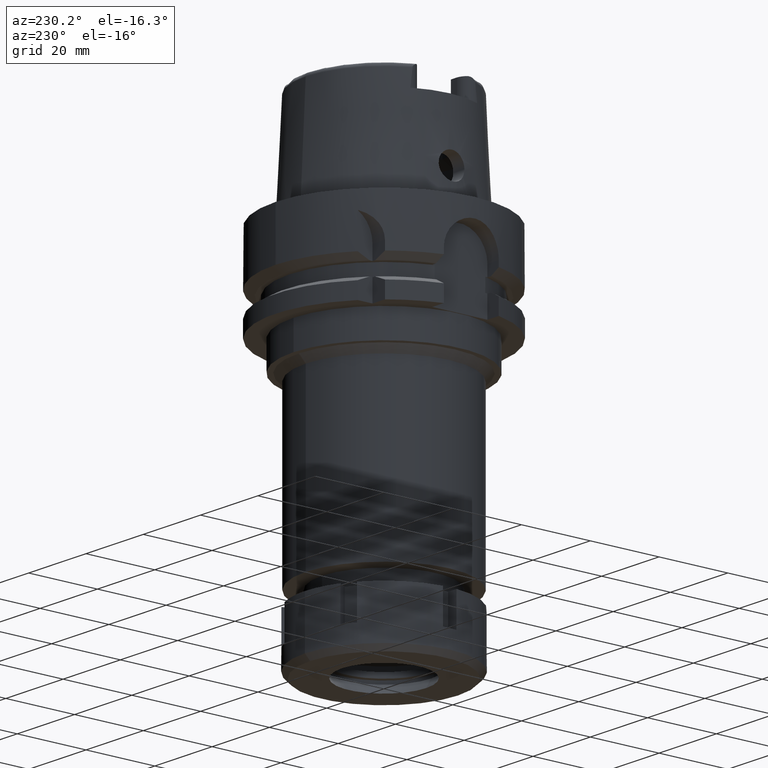
[diagram: clean part render]
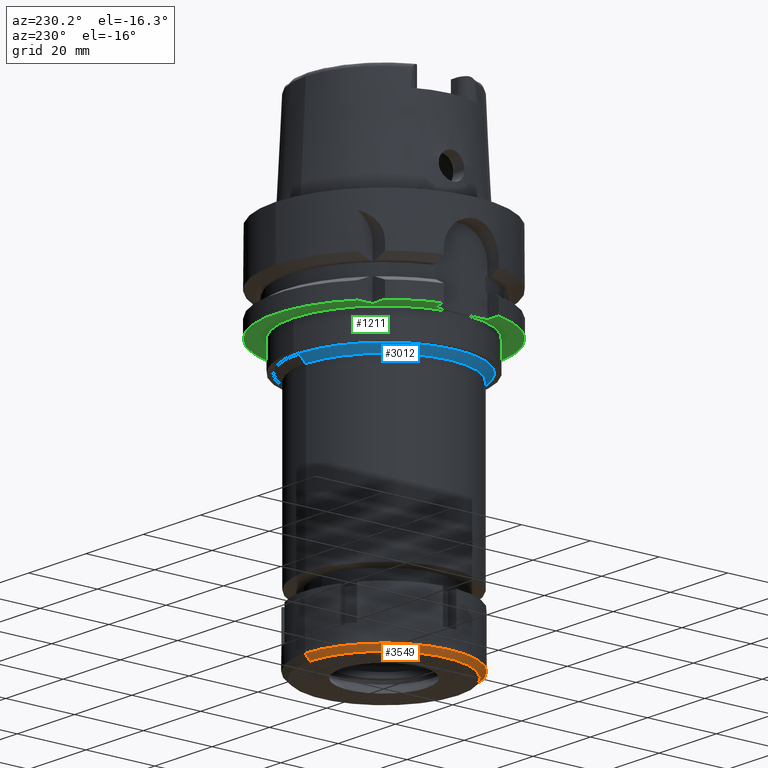
[diagram: same view with three faces highlighted in distinct colors, each labeled with its STEP entity id]
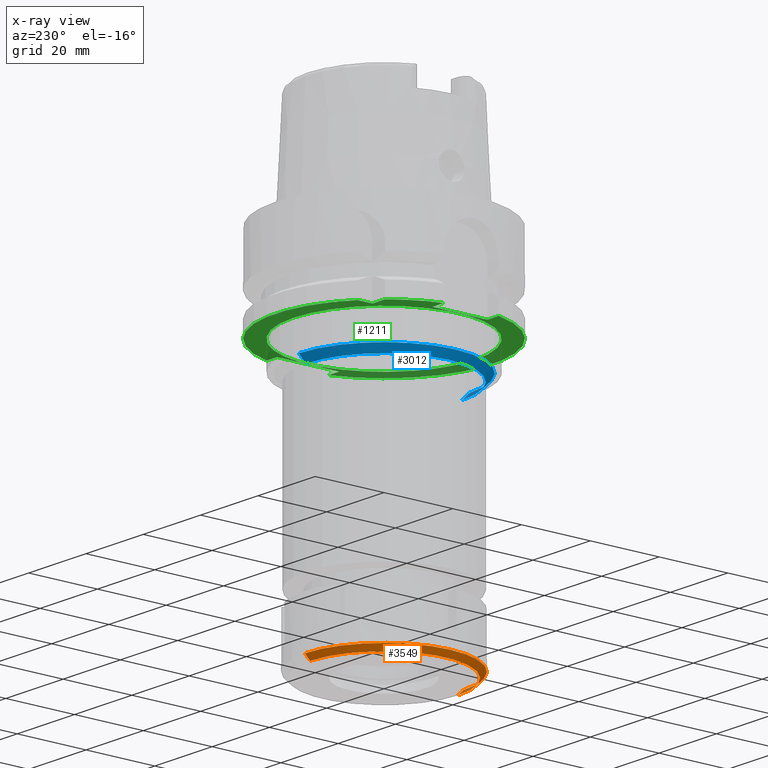
[diagram: x-ray of the same camera — body ghosted, the three highlighted faces saturated]
A machine part, auxiliary view with three faces highlighted in distinct colors.
The next image is the same camera in x-ray (body ghosted, the three faces saturated) — at least one of them is partly hidden behind the body in this view.
Their STEP definitions:

[orange] entity #3549 — the highlighted conical surface has half-angle 45 deg.
#183 = CARTESIAN_POINT ( 'NONE',  ( 0.0000000000000000000, 0.0000000000000000000, -16.00000000000000000 ) ) ;
#273 = DIRECTION ( 'NONE',  ( 0.0000000000000000000, 1.000000000000000000, 0.0000000000000000000 ) ) ;
#307 = CARTESIAN_POINT ( 'NONE',  ( 0.0000000000000000000, 0.0000000000000000000, -14.50000000000000000 ) ) ;
#409 = ORIENTED_EDGE ( 'NONE', *, *, #1628, .T. ) ;
#840 = DIRECTION ( 'NONE',  ( 0.0000000000000000000, 1.000000000000000000, 0.0000000000000000000 ) ) ;
#887 = ORIENTED_EDGE ( 'NONE', *, *, #3701, .T. ) ;
#901 = VECTOR ( 'NONE', #1030, 1000.000000000000114 ) ;
#1001 = ORIENTED_EDGE ( 'NONE', *, *, #3784, .F. ) ;
#1030 = DIRECTION ( 'NONE',  ( 0.0000000000000000000, 0.7071067811865474617, -0.7071067811865474617 ) ) ;
#1445 = DIRECTION ( 'NONE',  ( 0.0000000000000000000, 1.000000000000000000, 0.0000000000000000000 ) ) ;
#1590 = CARTESIAN_POINT ( 'NONE',  ( 0.0000000000000000000, -23.00000000000000000, -14.50000000000000000 ) ) ;
#1628 = EDGE_CURVE ( 'NONE', #2186, #5958, #2906, .T. ) ;
#1651 = DIRECTION ( 'NONE',  ( 0.0000000000000000000, 0.0000000000000000000, 1.000000000000000000 ) ) ;
#2078 = AXIS2_PLACEMENT_3D ( 'NONE', #183, #5344, #1445 ) ;
#2095 = CARTESIAN_POINT ( 'NONE',  ( 0.0000000000000000000, 23.00000000000000000, -14.50000000000000000 ) ) ;
#2186 = VERTEX_POINT ( 'NONE', #2095 ) ;
#2906 = LINE ( 'NONE', #5268, #3803 ) ;
#3229 = ORIENTED_EDGE ( 'NONE', *, *, #4338, .F. ) ;
#3549 = ADVANCED_FACE ( 'NONE', ( #4150 ), #4525, .T. ) ;
#3701 = EDGE_CURVE ( 'NONE', #5958, #4530, #5639, .T. ) ;
#3708 = DIRECTION ( 'NONE',  ( 0.0000000000000000000, 0.0000000000000000000, 1.000000000000000000 ) ) ;
#3784 = EDGE_CURVE ( 'NONE', #2186, #5021, #4949, .T. ) ;
#3803 = VECTOR ( 'NONE', #4806, 1000.000000000000114 ) ;
#3952 = CARTESIAN_POINT ( 'NONE',  ( 0.0000000000000000000, -23.00000000000000000, -14.50000000000000000 ) ) ;
#4150 = FACE_OUTER_BOUND ( 'NONE', #5321, .T. ) ;
#4338 = EDGE_CURVE ( 'NONE', #5021, #4530, #4381, .T. ) ;
#4381 = LINE ( 'NONE', #1590, #901 ) ;
#4525 = CONICAL_SURFACE ( 'NONE', #5709, 22.25000000000000000, 0.7853981633972997312 ) ;
#4530 = VERTEX_POINT ( 'NONE', #5170 ) ;
#4652 = AXIS2_PLACEMENT_3D ( 'NONE', #307, #1651, #273 ) ;
#4806 = DIRECTION ( 'NONE',  ( 0.0000000000000000000, -0.7071067811865474617, -0.7071067811865474617 ) ) ;
#4949 = CIRCLE ( 'NONE', #4652, 23.00000000000000000 ) ;
#5021 = VERTEX_POINT ( 'NONE', #3952 ) ;
#5170 = CARTESIAN_POINT ( 'NONE',  ( 0.0000000000000000000, -21.50000000000000000, -16.00000000000000000 ) ) ;
#5268 = CARTESIAN_POINT ( 'NONE',  ( 0.0000000000000000000, 23.00000000000000000, -14.50000000000000000 ) ) ;
#5321 = EDGE_LOOP ( 'NONE', ( #887, #3229, #1001, #409 ) ) ;
#5344 = DIRECTION ( 'NONE',  ( 0.0000000000000000000, 0.0000000000000000000, 1.000000000000000000 ) ) ;
#5544 = CARTESIAN_POINT ( 'NONE',  ( 0.0000000000000000000, 21.50000000000000000, -16.00000000000000000 ) ) ;
#5639 = CIRCLE ( 'NONE', #2078, 21.50000000000000000 ) ;
#5709 = AXIS2_PLACEMENT_3D ( 'NONE', #6043, #3708, #840 ) ;
#5958 = VERTEX_POINT ( 'NONE', #5544 ) ;
#6043 = CARTESIAN_POINT ( 'NONE',  ( 0.0000000000000000000, 0.0000000000000000000, -15.25000000000000000 ) ) ;

[blue] entity #3012 — the highlighted conical surface has half-angle 45 deg.
#56 = VERTEX_POINT ( 'NONE', #3055 ) ;
#63 = VERTEX_POINT ( 'NONE', #3021 ) ;
#279 = CIRCLE ( 'NONE', #4625, 22.75000000000000000 ) ;
#755 = DIRECTION ( 'NONE',  ( 0.0000000000000000000, -1.000000000000000000, 0.0000000000000000000 ) ) ;
#815 = DIRECTION ( 'NONE',  ( 0.0000000000000000000, -0.7071067811865474617, -0.7071067811865474617 ) ) ;
#824 = ORIENTED_EDGE ( 'NONE', *, *, #3095, .T. ) ;
#1073 = LINE ( 'NONE', #2955, #2232 ) ;
#1551 = CIRCLE ( 'NONE', #3829, 24.75000000000000000 ) ;
#1638 = CARTESIAN_POINT ( 'NONE',  ( 0.0000000000000000000, 24.75000000000000000, -34.00000000000000000 ) ) ;
#1742 = CARTESIAN_POINT ( 'NONE',  ( 0.0000000000000000000, 0.0000000000000000000, -36.00000000000000000 ) ) ;
#1933 = ORIENTED_EDGE ( 'NONE', *, *, #2192, .F. ) ;
#1985 = DIRECTION ( 'NONE',  ( 0.0000000000000000000, 0.0000000000000000000, 1.000000000000000000 ) ) ;
#2062 = DIRECTION ( 'NONE',  ( 0.0000000000000000000, 0.7071067811865474617, -0.7071067811865474617 ) ) ;
#2192 = EDGE_CURVE ( 'NONE', #5624, #3604, #1073, .T. ) ;
#2232 = VECTOR ( 'NONE', #2062, 1000.000000000000114 ) ;
#2530 = CONICAL_SURFACE ( 'NONE', #4128, 23.75000000000000000, 0.7853981633972997312 ) ;
#2662 = EDGE_CURVE ( 'NONE', #3604, #56, #279, .T. ) ;
#2938 = CARTESIAN_POINT ( 'NONE',  ( 0.0000000000000000000, 0.0000000000000000000, -35.00000000000000000 ) ) ;
#2955 = CARTESIAN_POINT ( 'NONE',  ( 0.0000000000000000000, -24.75000000000000000, -34.00000000000000000 ) ) ;
#3012 = ADVANCED_FACE ( 'NONE', ( #5364 ), #2530, .T. ) ;
#3021 = CARTESIAN_POINT ( 'NONE',  ( 0.0000000000000000000, 24.75000000000000000, -34.00000000000000000 ) ) ;
#3055 = CARTESIAN_POINT ( 'NONE',  ( 0.0000000000000000000, 22.75000000000000000, -36.00000000000000000 ) ) ;
#3095 = EDGE_CURVE ( 'NONE', #5624, #63, #1551, .T. ) ;
#3097 = DIRECTION ( 'NONE',  ( 0.0000000000000000000, 0.0000000000000000000, -1.000000000000000000 ) ) ;
#3604 = VERTEX_POINT ( 'NONE', #5659 ) ;
#3829 = AXIS2_PLACEMENT_3D ( 'NONE', #5424, #3097, #755 ) ;
#3873 = DIRECTION ( 'NONE',  ( 0.0000000000000000000, 1.000000000000000000, 0.0000000000000000000 ) ) ;
#3931 = LINE ( 'NONE', #1638, #5220 ) ;
#4128 = AXIS2_PLACEMENT_3D ( 'NONE', #2938, #1985, #3873 ) ;
#4625 = AXIS2_PLACEMENT_3D ( 'NONE', #1742, #4941, #5898 ) ;
#4769 = ORIENTED_EDGE ( 'NONE', *, *, #5885, .T. ) ;
#4941 = DIRECTION ( 'NONE',  ( 0.0000000000000000000, 0.0000000000000000000, -1.000000000000000000 ) ) ;
#5137 = ORIENTED_EDGE ( 'NONE', *, *, #2662, .F. ) ;
#5189 = EDGE_LOOP ( 'NONE', ( #5137, #1933, #824, #4769 ) ) ;
#5220 = VECTOR ( 'NONE', #815, 1000.000000000000114 ) ;
#5364 = FACE_OUTER_BOUND ( 'NONE', #5189, .T. ) ;
#5424 = CARTESIAN_POINT ( 'NONE',  ( 0.0000000000000000000, 0.0000000000000000000, -34.00000000000000000 ) ) ;
#5624 = VERTEX_POINT ( 'NONE', #6110 ) ;
#5659 = CARTESIAN_POINT ( 'NONE',  ( 0.0000000000000000000, -22.75000000000000000, -36.00000000000000000 ) ) ;
#5885 = EDGE_CURVE ( 'NONE', #63, #56, #3931, .T. ) ;
#5898 = DIRECTION ( 'NONE',  ( 0.0000000000000000000, -1.000000000000000000, 0.0000000000000000000 ) ) ;
#6110 = CARTESIAN_POINT ( 'NONE',  ( 0.0000000000000000000, -24.75000000000000000, -34.00000000000000000 ) ) ;

[green] entity #1211 — the highlighted planar face has unit normal (0, 0, 1).
#8 = ORIENTED_EDGE ( 'NONE', *, *, #3937, .F. ) ;
#10 = VERTEX_POINT ( 'NONE', #4924 ) ;
#16 = CARTESIAN_POINT ( 'NONE',  ( 26.50000000000000000, 9.000000000000000000, -26.00000000000000000 ) ) ;
#77 = CARTESIAN_POINT ( 'NONE',  ( 0.0000000000000000000, 26.30000000000000071, -26.00000000000000000 ) ) ;
#106 = DIRECTION ( 'NONE',  ( 1.000000000000000000, -7.275179563199999529E-14, 0.0000000000000000000 ) ) ;
#202 = EDGE_CURVE ( 'NONE', #4278, #2236, #4588, .T. ) ;
#260 = CARTESIAN_POINT ( 'NONE',  ( 0.0000000000000000000, 0.0000000000000000000, -26.00000000000000000 ) ) ;
#322 = VERTEX_POINT ( 'NONE', #613 ) ;
#478 = LINE ( 'NONE', #16, #5782 ) ;
#547 = CARTESIAN_POINT ( 'NONE',  ( 0.0000000000000000000, 0.0000000000000000000, -26.00000000000000000 ) ) ;
#546 = DIRECTION ( 'NONE',  ( 1.556703139445999911E-13, 1.000000000000000000, 0.0000000000000000000 ) ) ;
#572 = FACE_BOUND ( 'NONE', #2618, .T. ) ;
#586 = LINE ( 'NONE', #3422, #1010 ) ;
#604 = CARTESIAN_POINT ( 'NONE',  ( -26.50000000000000000, -8.000000000000000000, -26.00000000000000000 ) ) ;
#613 = CARTESIAN_POINT ( 'NONE',  ( -24.33618704727999926, 20.00000000000000000, -26.00000000000000000 ) ) ;
#656 = DIRECTION ( 'NONE',  ( 0.0000000000000000000, 1.000000000000000000, 0.0000000000000000000 ) ) ;
#671 = AXIS2_PLACEMENT_3D ( 'NONE', #260, #2628, #4531 ) ;
#693 = ORIENTED_EDGE ( 'NONE', *, *, #5800, .F. ) ;
#745 = CARTESIAN_POINT ( 'NONE',  ( -26.50000000000000000, 8.000000000000000000, -26.00000000000000000 ) ) ;
#747 = VECTOR ( 'NONE', #4694, 1000.000000000000000 ) ;
#990 = EDGE_CURVE ( 'NONE', #1853, #5200, #5641, .T. ) ;
#1010 = VECTOR ( 'NONE', #4789, 1000.000000000000000 ) ;
#1054 = CARTESIAN_POINT ( 'NONE',  ( 0.0000000000000000000, 0.0000000000000000000, -26.00000000000000000 ) ) ;
#1137 = VERTEX_POINT ( 'NONE', #77 ) ;
#1153 = VERTEX_POINT ( 'NONE', #3473 ) ;
#1196 = AXIS2_PLACEMENT_3D ( 'NONE', #5359, #5825, #656 ) ;
#1211 = ADVANCED_FACE ( 'NONE', ( #4777, #572 ), #1951, .F. ) ;
#1234 = VECTOR ( 'NONE', #546, 1000.000000000000000 ) ;
#1358 = DIRECTION ( 'NONE',  ( 0.0000000000000000000, -1.000000000000000000, 0.0000000000000000000 ) ) ;
#1480 = EDGE_CURVE ( 'NONE', #3442, #1153, #478, .T. ) ;
#1542 = EDGE_CURVE ( 'NONE', #2357, #4650, #3842, .T. ) ;
#1544 = VECTOR ( 'NONE', #4901, 1000.000000000000000 ) ;
#1650 = CIRCLE ( 'NONE', #4024, 31.50000000000000000 ) ;
#1656 = ORIENTED_EDGE ( 'NONE', *, *, #2896, .T. ) ;
#1682 = DIRECTION ( 'NONE',  ( 0.0000000000000000000, 0.0000000000000000000, -1.000000000000000000 ) ) ;
#1781 = CIRCLE ( 'NONE', #5441, 26.30000000000000071 ) ;
#1836 = DIRECTION ( 'NONE',  ( 0.0000000000000000000, 1.000000000000000000, 0.0000000000000000000 ) ) ;
#1853 = VERTEX_POINT ( 'NONE', #4699 ) ;
#1951 = PLANE ( 'NONE',  #5684 ) ;
#1957 = CARTESIAN_POINT ( 'NONE',  ( -26.50000000000000000, 8.000000000000000000, -26.00000000000000000 ) ) ;
#1984 = EDGE_LOOP ( 'NONE', ( #4563, #5492, #3626, #5697, #4630, #3598, #1656, #3223, #693, #4000, #4062 ) ) ;
#2027 = ORIENTED_EDGE ( 'NONE', *, *, #3185, .F. ) ;
#2236 = VERTEX_POINT ( 'NONE', #3460 ) ;
#2240 = CARTESIAN_POINT ( 'NONE',  ( 0.0000000000000000000, 0.0000000000000000000, -26.00000000000000000 ) ) ;
#2304 = EDGE_CURVE ( 'NONE', #1853, #3442, #2762, .T. ) ;
#2357 = VERTEX_POINT ( 'NONE', #2853 ) ;
#2412 = DIRECTION ( 'NONE',  ( 0.0000000000000000000, 0.0000000000000000000, 1.000000000000000000 ) ) ;
#2560 = EDGE_CURVE ( 'NONE', #2357, #322, #3171, .T. ) ;
#2618 = EDGE_LOOP ( 'NONE', ( #2027, #8 ) ) ;
#2628 = DIRECTION ( 'NONE',  ( 0.0000000000000000000, 0.0000000000000000000, -1.000000000000000000 ) ) ;
#2700 = DIRECTION ( 'NONE',  ( 0.0000000000000000000, -1.000000000000000000, 0.0000000000000000000 ) ) ;
#2762 = LINE ( 'NONE', #3297, #3321 ) ;
#2853 = CARTESIAN_POINT ( 'NONE',  ( -20.00000000000000000, 20.00000000000000000, -26.00000000000000000 ) ) ;
#2896 = EDGE_CURVE ( 'NONE', #4093, #4278, #4839, .T. ) ;
#2966 = DIRECTION ( 'NONE',  ( -0.7725773665802099233, 0.6349206349206079070, 0.0000000000000000000 ) ) ;
#3171 = LINE ( 'NONE', #6027, #3921 ) ;
#3185 = EDGE_CURVE ( 'NONE', #1137, #5967, #4428, .T. ) ;
#3223 = ORIENTED_EDGE ( 'NONE', *, *, #202, .T. ) ;
#3246 = EDGE_CURVE ( 'NONE', #10, #5200, #1650, .T. ) ;
#3297 = CARTESIAN_POINT ( 'NONE',  ( 26.50000000000000000, -9.000000000000000000, -26.00000000000000000 ) ) ;
#3321 = VECTOR ( 'NONE', #1836, 1000.000000000000000 ) ;
#3422 = CARTESIAN_POINT ( 'NONE',  ( -26.50000000000000000, -8.000000000000000000, -26.00000000000000000 ) ) ;
#3438 = DIRECTION ( 'NONE',  ( 0.0000000000000000000, 0.0000000000000000000, 1.000000000000000000 ) ) ;
#3440 = DIRECTION ( 'NONE',  ( 1.000000000000000000, 0.0000000000000000000, 0.0000000000000000000 ) ) ;
#3442 = VERTEX_POINT ( 'NONE', #3804 ) ;
#3460 = CARTESIAN_POINT ( 'NONE',  ( -30.46719547316000032, 8.000000000000000000, -26.00000000000000000 ) ) ;
#3473 = CARTESIAN_POINT ( 'NONE',  ( 30.18691769625000276, 9.000000000000000000, -26.00000000000000000 ) ) ;
#3598 = ORIENTED_EDGE ( 'NONE', *, *, #5412, .F. ) ;
#3626 = ORIENTED_EDGE ( 'NONE', *, *, #2304, .F. ) ;
#3718 = CARTESIAN_POINT ( 'NONE',  ( 26.50000000000000000, -9.000000000000000000, -26.00000000000000000 ) ) ;
#3804 = CARTESIAN_POINT ( 'NONE',  ( 26.50000000000000000, 9.000000000000000000, -26.00000000000000000 ) ) ;
#3842 = LINE ( 'NONE', #3932, #1234 ) ;
#3921 = VECTOR ( 'NONE', #5959, 1000.000000000000000 ) ;
#3932 = CARTESIAN_POINT ( 'NONE',  ( -20.00000000000000000, 20.00000000000000000, -26.00000000000000000 ) ) ;
#3937 = EDGE_CURVE ( 'NONE', #5967, #1137, #1781, .T. ) ;
#4000 = ORIENTED_EDGE ( 'NONE', *, *, #2560, .F. ) ;
#4024 = AXIS2_PLACEMENT_3D ( 'NONE', #4213, #4243, #1358 ) ;
#4028 = AXIS2_PLACEMENT_3D ( 'NONE', #1054, #3438, #2966 ) ;
#4062 = ORIENTED_EDGE ( 'NONE', *, *, #1542, .T. ) ;
#4093 = VERTEX_POINT ( 'NONE', #4633 ) ;
#4213 = CARTESIAN_POINT ( 'NONE',  ( 0.0000000000000000000, 0.0000000000000000000, -26.00000000000000000 ) ) ;
#4218 = DIRECTION ( 'NONE',  ( 1.000000000000000000, 6.889739586341000002E-14, 0.0000000000000000000 ) ) ;
#4243 = DIRECTION ( 'NONE',  ( 0.0000000000000000000, 0.0000000000000000000, 1.000000000000000000 ) ) ;
#4278 = VERTEX_POINT ( 'NONE', #1957 ) ;
#4428 = CIRCLE ( 'NONE', #671, 26.30000000000000071 ) ;
#4434 = CIRCLE ( 'NONE', #4028, 31.50000000000000711 ) ;
#4531 = DIRECTION ( 'NONE',  ( 0.0000000000000000000, 1.000000000000000000, 0.0000000000000000000 ) ) ;
#4563 = ORIENTED_EDGE ( 'NONE', *, *, #4617, .F. ) ;
#4588 = LINE ( 'NONE', #745, #747 ) ;
#4617 = EDGE_CURVE ( 'NONE', #1153, #4650, #4955, .T. ) ;
#4630 = ORIENTED_EDGE ( 'NONE', *, *, #3246, .F. ) ;
#4633 = CARTESIAN_POINT ( 'NONE',  ( -26.50000000000000000, -8.000000000000000000, -26.00000000000000000 ) ) ;
#4650 = VERTEX_POINT ( 'NONE', #5297 ) ;
#4694 = DIRECTION ( 'NONE',  ( -1.000000000000000000, 8.776122650817999518E-14, 0.0000000000000000000 ) ) ;
#4699 = CARTESIAN_POINT ( 'NONE',  ( 26.50000000000000000, -9.000000000000000000, -26.00000000000000000 ) ) ;
#4777 = FACE_OUTER_BOUND ( 'NONE', #1984, .T. ) ;
#4789 = DIRECTION ( 'NONE',  ( -1.000000000000000000, -8.686570378870999660E-14, 0.0000000000000000000 ) ) ;
#4839 = LINE ( 'NONE', #604, #1544 ) ;
#4901 = DIRECTION ( 'NONE',  ( 0.0000000000000000000, 1.000000000000000000, 0.0000000000000000000 ) ) ;
#4924 = CARTESIAN_POINT ( 'NONE',  ( -30.46719547316000032, -8.000000000000000000, -26.00000000000000000 ) ) ;
#4955 = CIRCLE ( 'NONE', #1196, 31.50000000000000000 ) ;
#5083 = VECTOR ( 'NONE', #4218, 1000.000000000000000 ) ;
#5200 = VERTEX_POINT ( 'NONE', #5626 ) ;
#5297 = CARTESIAN_POINT ( 'NONE',  ( -20.00000000000000000, 24.33618704727999926, -26.00000000000000000 ) ) ;
#5359 = CARTESIAN_POINT ( 'NONE',  ( 0.0000000000000000000, 0.0000000000000000000, -26.00000000000000000 ) ) ;
#5412 = EDGE_CURVE ( 'NONE', #4093, #10, #586, .T. ) ;
#5441 = AXIS2_PLACEMENT_3D ( 'NONE', #2240, #1682, #2700 ) ;
#5492 = ORIENTED_EDGE ( 'NONE', *, *, #1480, .F. ) ;
#5626 = CARTESIAN_POINT ( 'NONE',  ( 30.18691769625000276, -9.000000000000000000, -26.00000000000000000 ) ) ;
#5641 = LINE ( 'NONE', #3718, #5083 ) ;
#5684 = AXIS2_PLACEMENT_3D ( 'NONE', #547, #2412, #3440 ) ;
#5697 = ORIENTED_EDGE ( 'NONE', *, *, #990, .T. ) ;
#5782 = VECTOR ( 'NONE', #106, 1000.000000000000000 ) ;
#5800 = EDGE_CURVE ( 'NONE', #322, #2236, #4434, .T. ) ;
#5825 = DIRECTION ( 'NONE',  ( 0.0000000000000000000, 0.0000000000000000000, 1.000000000000000000 ) ) ;
#5948 = CARTESIAN_POINT ( 'NONE',  ( 0.0000000000000000000, -26.30000000000000071, -26.00000000000000000 ) ) ;
#5959 = DIRECTION ( 'NONE',  ( -1.000000000000000000, -1.540316790609000194E-13, 0.0000000000000000000 ) ) ;
#5967 = VERTEX_POINT ( 'NONE', #5948 ) ;
#6027 = CARTESIAN_POINT ( 'NONE',  ( -20.00000000000000000, 20.00000000000000000, -26.00000000000000000 ) ) ;